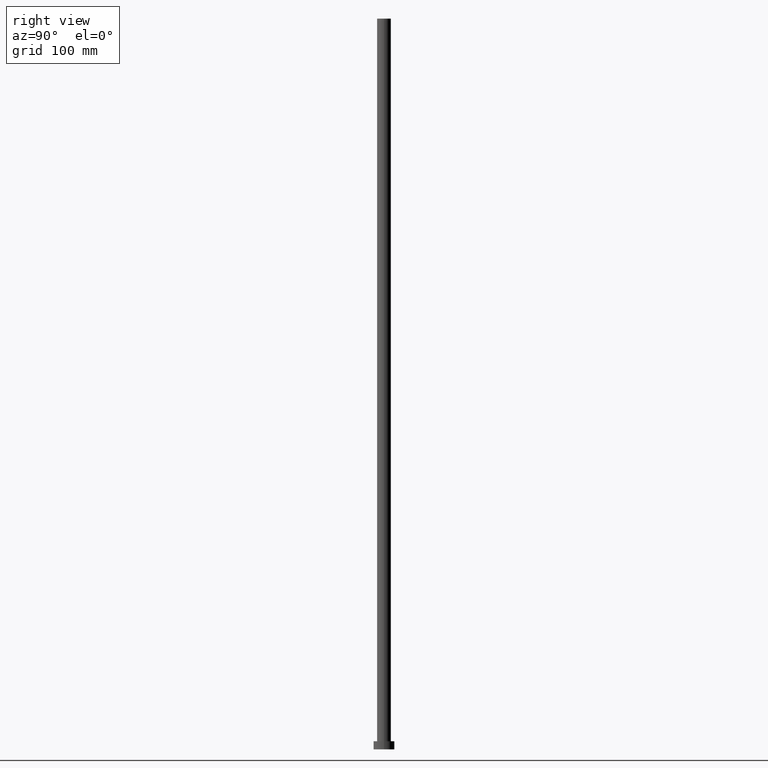
[diagram: clean part render]
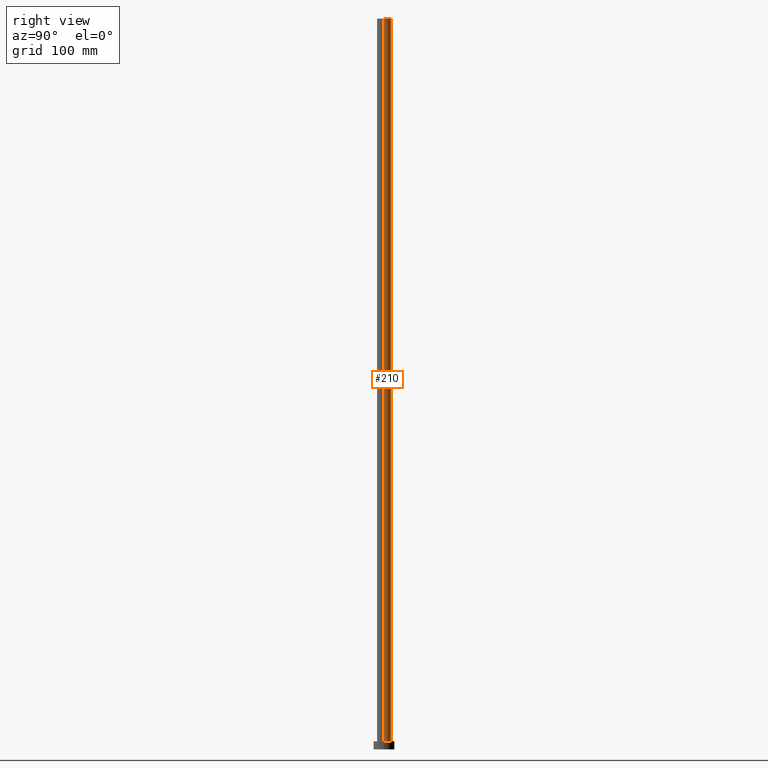
[diagram: same view with one face highlighted and labeled with its STEP entity id]
A machine part, right view. The second image highlights one B-rep face of the part: STEP entity #210.
In plain terms, the highlighted cylindrical surface (edge-blend (fillet) strip) has radius 6 mm, axis along (-0, -0, -1).
Its self-contained STEP definition (entity closure, byte-faithful):
#6 = CARTESIAN_POINT ( 'NONE',  ( -6.000000000000000888, 0.000000000000000000, 630.0000000000000000 ) ) ;
#16 = FACE_OUTER_BOUND ( 'NONE', #198, .T. ) ;
#19 = DIRECTION ( 'NONE',  ( 1.000000000000000000, 0.000000000000000000, 0.000000000000000000 ) ) ;
#27 = EDGE_CURVE ( 'NONE', #58, #85, #32, .T. ) ;
#32 = CIRCLE ( 'NONE', #141, 6.000000000000000888 ) ;
#36 = CARTESIAN_POINT ( 'NONE',  ( -6.000000000000000888, 0.000000000000000000, 630.0000000000000000 ) ) ;
#44 = CIRCLE ( 'NONE', #80, 6.000000000000000888 ) ;
#48 = EDGE_CURVE ( 'NONE', #140, #85, #248, .T. ) ;
#51 = VERTEX_POINT ( 'NONE', #214 ) ;
#52 = DIRECTION ( 'NONE',  ( -0.000000000000000000, -0.000000000000000000, -1.000000000000000000 ) ) ;
#58 = VERTEX_POINT ( 'NONE', #250 ) ;
#74 = CARTESIAN_POINT ( 'NONE',  ( 6.000000000000000888, 7.347880794884120722E-16, 630.0000000000000000 ) ) ;
#80 = AXIS2_PLACEMENT_3D ( 'NONE', #242, #155, #111 ) ;
#85 = VERTEX_POINT ( 'NONE', #131 ) ;
#95 = ORIENTED_EDGE ( 'NONE', *, *, #27, .T. ) ;
#99 = DIRECTION ( 'NONE',  ( 0.000000000000000000, 0.000000000000000000, 1.000000000000000000 ) ) ;
#108 = LINE ( 'NONE', #74, #213 ) ;
#111 = DIRECTION ( 'NONE',  ( 1.000000000000000000, 0.000000000000000000, 0.000000000000000000 ) ) ;
#112 = EDGE_CURVE ( 'NONE', #51, #140, #44, .T. ) ;
#113 = DIRECTION ( 'NONE',  ( -0.000000000000000000, -0.000000000000000000, -1.000000000000000000 ) ) ;
#126 = VECTOR ( 'NONE', #113, 1000.000000000000000 ) ;
#131 = CARTESIAN_POINT ( 'NONE',  ( -6.000000000000000888, 0.000000000000000000, 7.000000000000000000 ) ) ;
#136 = ORIENTED_EDGE ( 'NONE', *, *, #148, .T. ) ;
#140 = VERTEX_POINT ( 'NONE', #36 ) ;
#141 = AXIS2_PLACEMENT_3D ( 'NONE', #202, #99, #19 ) ;
#144 = CARTESIAN_POINT ( 'NONE',  ( 0.000000000000000000, 0.000000000000000000, 630.0000000000000000 ) ) ;
#147 = AXIS2_PLACEMENT_3D ( 'NONE', #144, #52, #183 ) ;
#148 = EDGE_CURVE ( 'NONE', #51, #58, #108, .T. ) ;
#155 = DIRECTION ( 'NONE',  ( 0.000000000000000000, 0.000000000000000000, 1.000000000000000000 ) ) ;
#170 = DIRECTION ( 'NONE',  ( -0.000000000000000000, -0.000000000000000000, -1.000000000000000000 ) ) ;
#183 = DIRECTION ( 'NONE',  ( -1.000000000000000000, 0.000000000000000000, 0.000000000000000000 ) ) ;
#198 = EDGE_LOOP ( 'NONE', ( #212, #136, #95, #234 ) ) ;
#202 = CARTESIAN_POINT ( 'NONE',  ( 0.000000000000000000, 0.000000000000000000, 7.000000000000000000 ) ) ;
#210 = ADVANCED_FACE ( 'NONE', ( #16 ), #235, .T. ) ;
#212 = ORIENTED_EDGE ( 'NONE', *, *, #112, .F. ) ;
#213 = VECTOR ( 'NONE', #170, 1000.000000000000000 ) ;
#214 = CARTESIAN_POINT ( 'NONE',  ( 6.000000000000000888, 7.347880794884120722E-16, 630.0000000000000000 ) ) ;
#234 = ORIENTED_EDGE ( 'NONE', *, *, #48, .F. ) ;
#235 = CYLINDRICAL_SURFACE ( 'NONE', #147, 6.000000000000000888 ) ;
#242 = CARTESIAN_POINT ( 'NONE',  ( 0.000000000000000000, 0.000000000000000000, 630.0000000000000000 ) ) ;
#248 = LINE ( 'NONE', #6, #126 ) ;
#250 = CARTESIAN_POINT ( 'NONE',  ( 6.000000000000000888, 7.347880794884120722E-16, 7.000000000000000000 ) ) ;